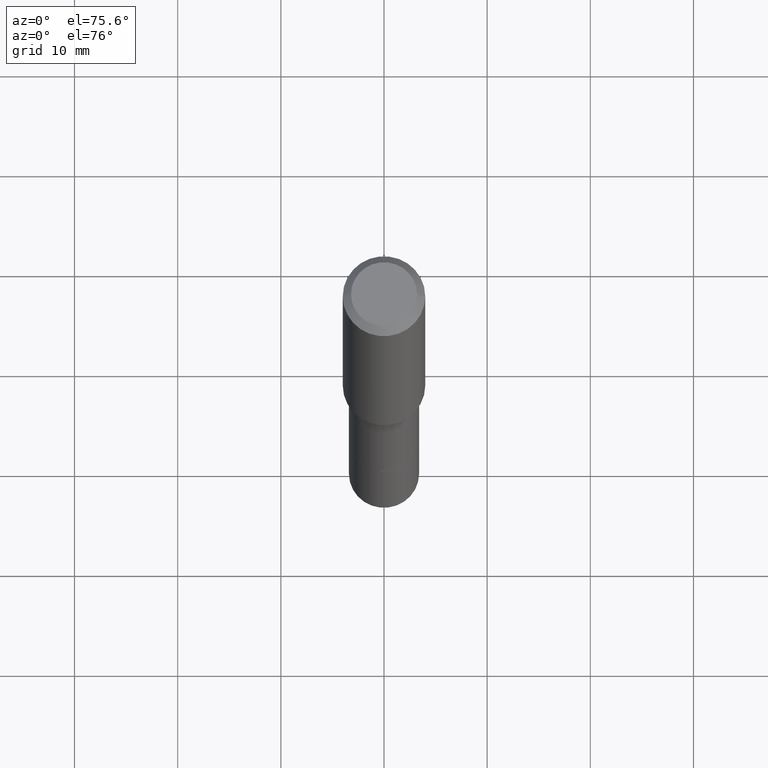
[diagram: clean part render]
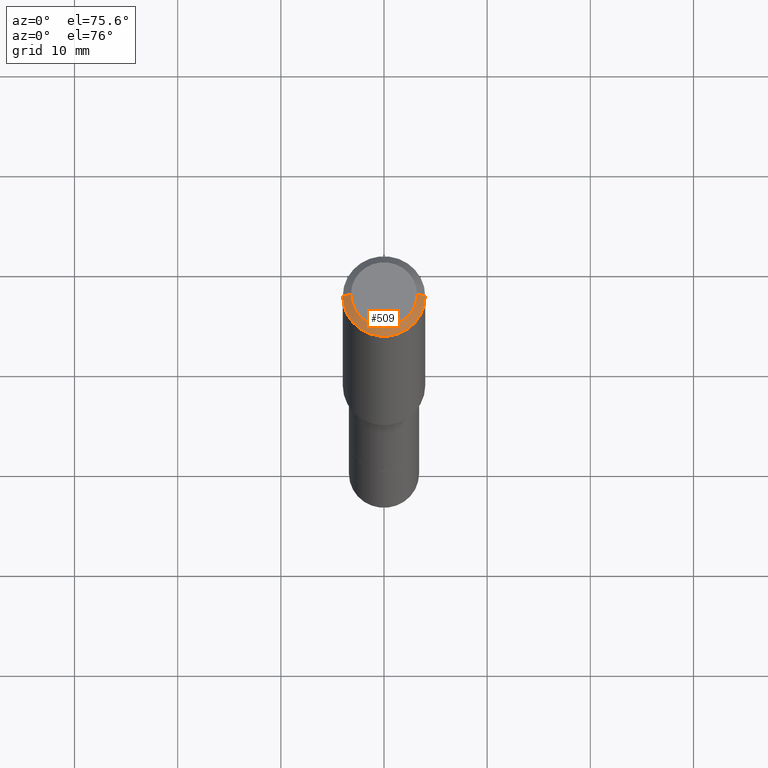
[diagram: same view with one face highlighted and labeled with its STEP entity id]
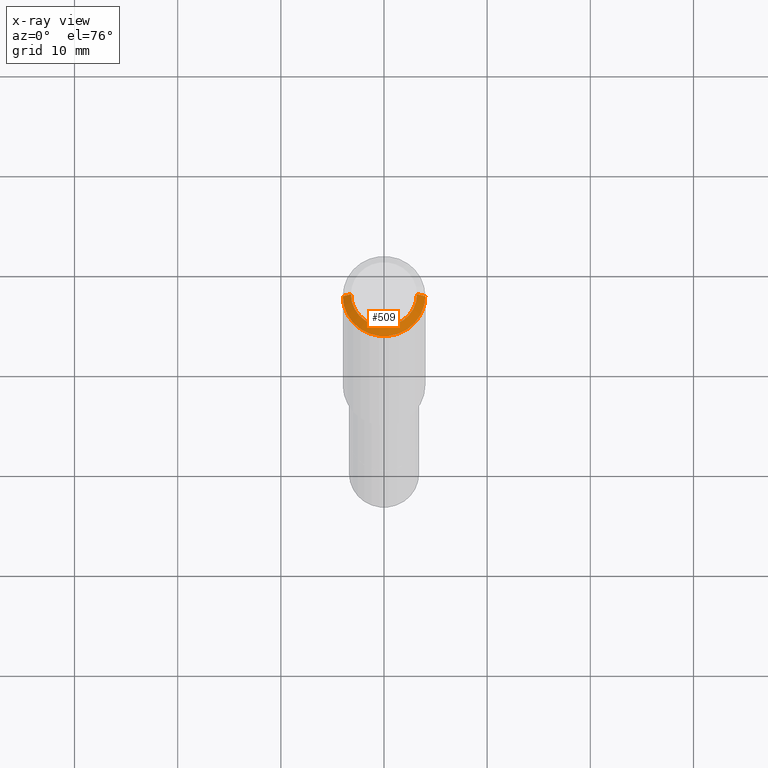
[diagram: x-ray of the same camera — body ghosted, the highlighted face saturated]
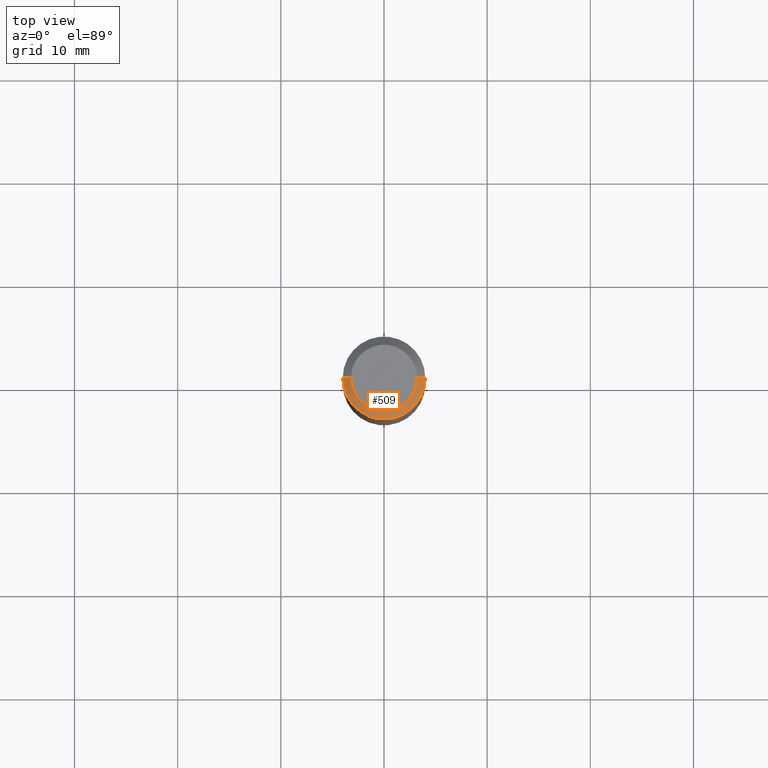
[diagram: same view with one face highlighted and labeled with its STEP entity id]
A machine part, auxiliary view. The second image highlights one B-rep face of the part: STEP entity #509.
The next image is the same camera in x-ray: the body ghosted, the highlighted face saturated — about 0% of this face is hidden behind the body in this view.
A second angle (top view) of the same face is appended — the face is thin or edge-on in the first view.
In plain terms, the highlighted conical surface has half-angle 45 deg.
Its self-contained STEP definition (entity closure, byte-faithful):
#7 = AXIS2_PLACEMENT_3D ( 'NONE', #364, #443, #240 ) ;
#10 = EDGE_CURVE ( 'NONE', #255, #508, #46, .T. ) ;
#14 = DIRECTION ( 'NONE',  ( 1.000000000000000000, -6.982962677686265922E-15, 4.876281427513067258E-29 ) ) ;
#24 = CARTESIAN_POINT ( 'NONE',  ( -0.1575000000000000011, 9.898349595620272334E-16, -0.03150000000000020839 ) ) ;
#45 = FACE_OUTER_BOUND ( 'NONE', #199, .T. ) ;
#46 = CIRCLE ( 'NONE', #73, 0.1260000000000000009 ) ;
#70 = CARTESIAN_POINT ( 'NONE',  ( 7.703226739483230474E-31, -1.099816621735598031E-16, -0.03150000000000020839 ) ) ;
#73 = AXIS2_PLACEMENT_3D ( 'NONE', #485, #122, #14 ) ;
#81 = CIRCLE ( 'NONE', #117, 0.1575000000000000011 ) ;
#93 = ORIENTED_EDGE ( 'NONE', *, *, #10, .F. ) ;
#113 = ORIENTED_EDGE ( 'NONE', *, *, #203, .F. ) ;
#117 = AXIS2_PLACEMENT_3D ( 'NONE', #70, #266, #303 ) ;
#118 = EDGE_CURVE ( 'NONE', #255, #396, #138, .T. ) ;
#122 = DIRECTION ( 'NONE',  ( -2.445468806185136597E-29, 3.491481338843145583E-15, 1.000000000000000000 ) ) ;
#138 = LINE ( 'NONE', #24, #440 ) ;
#142 = CARTESIAN_POINT ( 'NONE',  ( -0.1260000000000000009, 9.348441284752484904E-16, 3.860086710906110326E-18 ) ) ;
#199 = EDGE_LOOP ( 'NONE', ( #113, #93, #464, #232 ) ) ;
#203 = EDGE_CURVE ( 'NONE', #508, #504, #262, .T. ) ;
#232 = ORIENTED_EDGE ( 'NONE', *, *, #294, .T. ) ;
#235 = CARTESIAN_POINT ( 'NONE',  ( 0.1575000000000000011, -1.209798283909146741E-15, -0.03150000000000020839 ) ) ;
#240 = DIRECTION ( 'NONE',  ( -1.000000000000000000, 6.982962677686265922E-15, 0.000000000000000000 ) ) ;
#255 = VERTEX_POINT ( 'NONE', #142 ) ;
#262 = LINE ( 'NONE', #343, #383 ) ;
#266 = DIRECTION ( 'NONE',  ( -2.445468806185136597E-29, 3.491481338843145583E-15, 1.000000000000000000 ) ) ;
#294 = EDGE_CURVE ( 'NONE', #396, #504, #81, .T. ) ;
#303 = DIRECTION ( 'NONE',  ( 1.000000000000000000, -6.982962677686265922E-15, 0.000000000000000000 ) ) ;
#315 = DIRECTION ( 'NONE',  ( 0.7071067811865450192, -7.319954787623246579E-15, -0.7071067811865500152 ) ) ;
#317 = CARTESIAN_POINT ( 'NONE',  ( 0.1260000000000000009, -1.027466422270894443E-15, 3.860086710919124220E-18 ) ) ;
#326 = CARTESIAN_POINT ( 'NONE',  ( -0.1575000000000000011, -1.379967723665005201E-15, -0.03150000000000020839 ) ) ;
#343 = CARTESIAN_POINT ( 'NONE',  ( 0.1575000000000000011, -1.190510096822576026E-15, -0.03150000000000020839 ) ) ;
#364 = CARTESIAN_POINT ( 'NONE',  ( 7.703226739483230474E-31, -1.099816621735598031E-16, -0.03150000000000020839 ) ) ;
#377 = DIRECTION ( 'NONE',  ( -0.7071067811865450192, 2.468850131082230634E-15, -0.7071067811865500152 ) ) ;
#383 = VECTOR ( 'NONE', #315, 39.37007874015748143 ) ;
#396 = VERTEX_POINT ( 'NONE', #326 ) ;
#422 = CONICAL_SURFACE ( 'NONE', #7, 0.1575000000000000011, 0.7853981633974447263 ) ;
#440 = VECTOR ( 'NONE', #377, 39.37007874015748143 ) ;
#443 = DIRECTION ( 'NONE',  ( 2.445468806185136597E-29, -3.491481338843145583E-15, -1.000000000000000000 ) ) ;
#464 = ORIENTED_EDGE ( 'NONE', *, *, #118, .T. ) ;
#485 = CARTESIAN_POINT ( 'NONE',  ( -9.439721640706193907E-47, 1.347742071746725396E-32, 3.860086710912455880E-18 ) ) ;
#504 = VERTEX_POINT ( 'NONE', #235 ) ;
#508 = VERTEX_POINT ( 'NONE', #317 ) ;
#509 = ADVANCED_FACE ( 'NONE', ( #45 ), #422, .T. ) ;